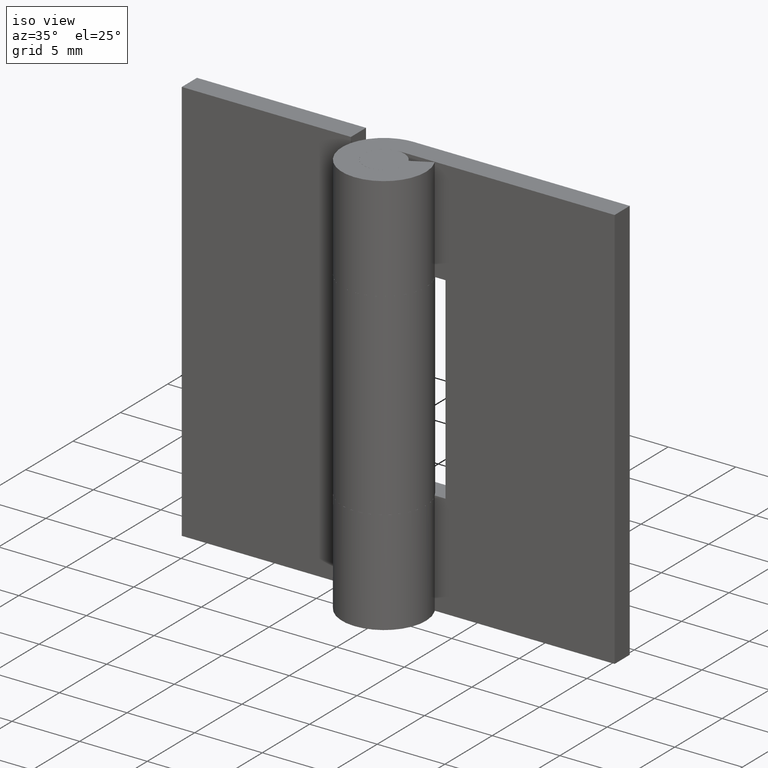
[diagram: clean part render]
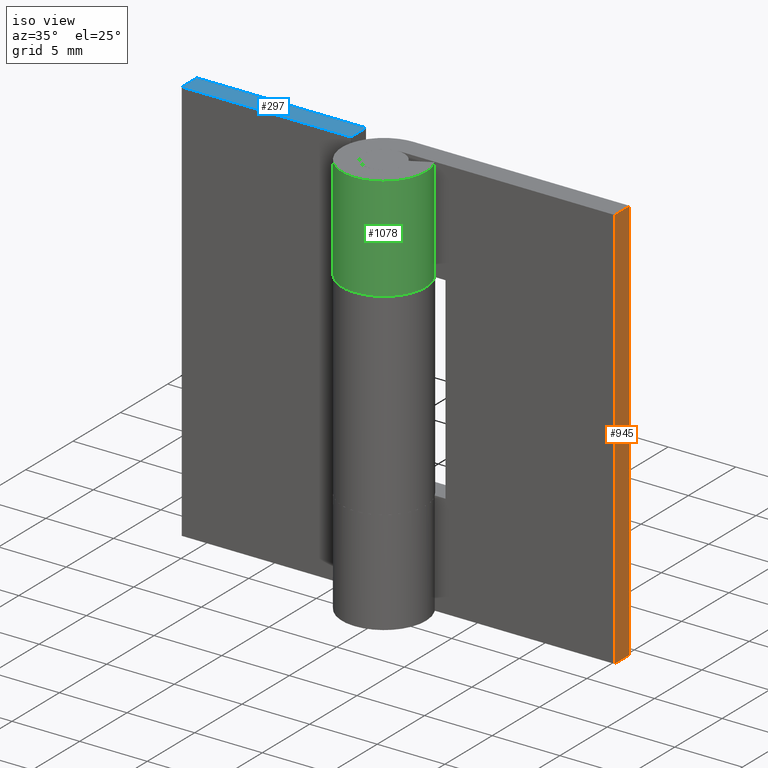
[diagram: same view with three faces highlighted in distinct colors, each labeled with its STEP entity id]
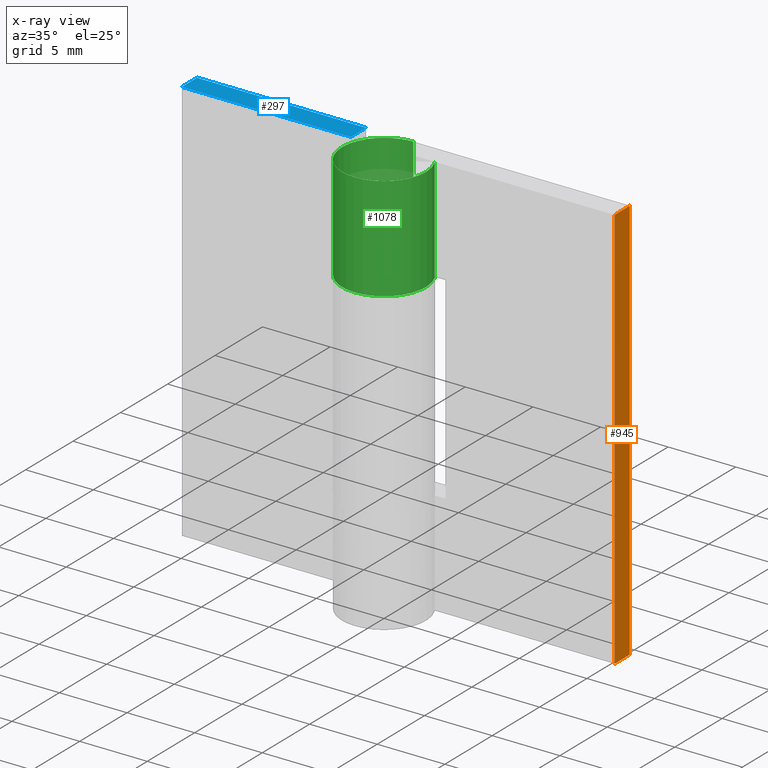
[diagram: x-ray of the same camera — body ghosted, the three highlighted faces saturated]
A machine part, iso view with three faces highlighted in distinct colors.
The next image is the same camera in x-ray (body ghosted, the three faces saturated) — at least one of them is partly hidden behind the body in this view.
Their STEP definitions:

[orange] entity #945 — the highlighted face is a freeform B-spline surface patch.
#725=CARTESIAN_POINT('',(16.0,3.099998000000000,0.0));
#726=VERTEX_POINT('',#725);
#732=CARTESIAN_POINT('',(16.0,1.500000000000000,0.0));
#733=VERTEX_POINT('',#732);
#734=CARTESIAN_POINT('',(16.0,3.099998000000000,0.0));
#735=CARTESIAN_POINT('',(16.0,1.500000000000000,0.0));
#736=QUASI_UNIFORM_CURVE('',1,(#734,#735),.UNSPECIFIED.,.F.,.U.);
#737=EDGE_CURVE('',#726,#733,#736,.T.);
#831=CARTESIAN_POINT('',(16.0,1.500000000000000,30.0));
#832=VERTEX_POINT('',#831);
#838=CARTESIAN_POINT('',(16.0,3.099998000000000,30.0));
#839=VERTEX_POINT('',#838);
#840=CARTESIAN_POINT('',(16.0,3.099998000000000,30.0));
#841=CARTESIAN_POINT('',(16.0,1.500000000000000,30.0));
#842=QUASI_UNIFORM_CURVE('',1,(#840,#841),.UNSPECIFIED.,.F.,.U.);
#843=EDGE_CURVE('',#839,#832,#842,.T.);
#918=CARTESIAN_POINT('',(16.0,1.500000000000000,30.0));
#919=CARTESIAN_POINT('',(16.0,1.500000000000000,0.0));
#920=QUASI_UNIFORM_CURVE('',1,(#918,#919),.UNSPECIFIED.,.F.,.U.);
#921=EDGE_CURVE('',#832,#733,#920,.T.);
#930=CARTESIAN_POINT('',(16.0,1.420080103001106,31.498499941854181));
#931=CARTESIAN_POINT('',(16.0,1.420080103001106,-1.498500746516883));
#932=CARTESIAN_POINT('',(16.0,3.179917939914184,31.498499941854181));
#933=CARTESIAN_POINT('',(16.0,3.179917939914184,-1.498500746516883));
#934=B_SPLINE_SURFACE_WITH_KNOTS('',1,1,((#930,#932),(#931,#933)),.UNSPECIFIED.,.F.,.F.,.U.,(2,2),(2,2),(0.0,32.997000688371060),(0.041708334948495,0.958291687403247),.UNSPECIFIED.);
#935=ORIENTED_EDGE('',*,*,#737,.F.);
#936=CARTESIAN_POINT('',(16.0,3.099998000000000,30.0));
#937=CARTESIAN_POINT('',(16.0,3.099998000000000,0.0));
#938=QUASI_UNIFORM_CURVE('',1,(#936,#937),.UNSPECIFIED.,.F.,.U.);
#939=EDGE_CURVE('',#839,#726,#938,.T.);
#940=ORIENTED_EDGE('',*,*,#939,.F.);
#941=ORIENTED_EDGE('',*,*,#843,.T.);
#942=ORIENTED_EDGE('',*,*,#921,.T.);
#943=EDGE_LOOP('',(#935,#940,#941,#942));
#944=FACE_OUTER_BOUND('',#943,.T.);
#945=ADVANCED_FACE('',(#944),#934,.T.);

[blue] entity #297 — the highlighted face is a freeform B-spline surface patch.
#135=CARTESIAN_POINT('',(-3.500000000000100,3.099998000000000,30.0));
#136=VERTEX_POINT('',#135);
#142=CARTESIAN_POINT('',(-3.500000000000100,1.499999999999946,30.0));
#143=VERTEX_POINT('',#142);
#144=CARTESIAN_POINT('',(-3.500000000000100,1.499999999999946,30.0));
#145=CARTESIAN_POINT('',(-3.500000000000100,3.099998000000000,30.0));
#146=QUASI_UNIFORM_CURVE('',1,(#144,#145),.UNSPECIFIED.,.F.,.U.);
#147=EDGE_CURVE('',#143,#136,#146,.T.);
#270=CARTESIAN_POINT('',(-16.624374975772572,1.420080103001050,30.0));
#271=CARTESIAN_POINT('',(-2.875624688951403,1.420080103001050,30.0));
#272=CARTESIAN_POINT('',(-16.624374975772572,3.179917939914187,30.0));
#273=CARTESIAN_POINT('',(-2.875624688951403,3.179917939914187,30.0));
#274=B_SPLINE_SURFACE_WITH_KNOTS('',1,1,((#270,#272),(#271,#273)),.UNSPECIFIED.,.F.,.F.,.U.,(2,2),(2,2),(0.0,13.748750286821171),(0.041708334948495,0.958291687403247),.UNSPECIFIED.);
#275=CARTESIAN_POINT('',(-16.0,1.500000000000000,30.0));
#276=VERTEX_POINT('',#275);
#277=CARTESIAN_POINT('',(-16.0,1.500000000000000,30.0));
#278=CARTESIAN_POINT('',(-3.500000000000100,1.499999999999946,30.0));
#279=QUASI_UNIFORM_CURVE('',1,(#277,#278),.UNSPECIFIED.,.F.,.U.);
#280=EDGE_CURVE('',#276,#143,#279,.T.);
#281=ORIENTED_EDGE('',*,*,#280,.T.);
#282=ORIENTED_EDGE('',*,*,#147,.T.);
#283=CARTESIAN_POINT('',(-16.0,3.099998000000000,30.0));
#284=VERTEX_POINT('',#283);
#285=CARTESIAN_POINT('',(-3.500000000000100,3.099998000000000,30.0));
#286=CARTESIAN_POINT('',(-16.0,3.099998000000000,30.0));
#287=QUASI_UNIFORM_CURVE('',1,(#285,#286),.UNSPECIFIED.,.F.,.U.);
#288=EDGE_CURVE('',#136,#284,#287,.T.);
#289=ORIENTED_EDGE('',*,*,#288,.T.);
#290=CARTESIAN_POINT('',(-16.0,3.099998000000000,30.0));
#291=CARTESIAN_POINT('',(-16.0,1.500000000000000,30.0));
#292=QUASI_UNIFORM_CURVE('',1,(#290,#291),.UNSPECIFIED.,.F.,.U.);
#293=EDGE_CURVE('',#284,#276,#292,.T.);
#294=ORIENTED_EDGE('',*,*,#293,.T.);
#295=EDGE_LOOP('',(#281,#282,#289,#294));
#296=FACE_OUTER_BOUND('',#295,.T.);
#297=ADVANCED_FACE('',(#296),#274,.T.);

[green] entity #1078 — the highlighted face is a freeform B-spline surface patch.
#512=CARTESIAN_POINT('',(2.739981751764050,1.450000000000000,22.300002999999801));
#513=VERTEX_POINT('',#512);
#514=CARTESIAN_POINT('',(0.0,3.099998000000000,22.300002999999801));
#515=VERTEX_POINT('',#514);
#516=CARTESIAN_POINT('',(2.739981751764050,1.450000000000000,22.300002999999801));
#517=CARTESIAN_POINT('',(3.842027408336781,-0.632471143840419,22.300002999999805));
#518=CARTESIAN_POINT('',(2.130594885355311,-2.251790737784725,22.300002999999801));
#519=CARTESIAN_POINT('',(0.419162362373840,-3.871110331729031,22.300002999999805));
#520=CARTESIAN_POINT('',(-1.599218559171949,-2.655655344977900,22.300002999999801));
#521=CARTESIAN_POINT('',(-3.617599480717733,-1.440200358226772,22.300002999999805));
#522=CARTESIAN_POINT('',(-2.986848545660752,0.829898189834368,22.300002999999801));
#523=CARTESIAN_POINT('',(-2.356097610603769,3.099996737895513,22.300002999999805));
#524=CARTESIAN_POINT('',(0.0,3.099998000000000,22.300002999999801));
#532=(BOUNDED_CURVE()B_SPLINE_CURVE(2,(#516,#517,#518,#519,#520,#521,#522,#523,#524),.UNSPECIFIED.,.F.,.U.)B_SPLINE_CURVE_WITH_KNOTS((3,2,2,2,3),(0.0,0.250000000000000,0.500000000000000,0.750000000000000,1.0),.UNSPECIFIED.)CURVE()GEOMETRIC_REPRESENTATION_ITEM()RATIONAL_B_SPLINE_CURVE((1.0,0.796150117301084,1.0,0.796150117301084,1.0,0.796150117301084,1.0,0.796150117301084,1.0))REPRESENTATION_ITEM(''));
#533=EDGE_CURVE('',#513,#515,#532,.T.);
#535=CARTESIAN_POINT('',(0.003521362805220,3.099998000000000,22.300002999999801));
#536=VERTEX_POINT('',#535);
#537=CARTESIAN_POINT('',(0.0,3.099998000000000,22.300002999999801));
#538=CARTESIAN_POINT('',(0.003521362805220,3.099998000000000,22.300002999999801));
#539=QUASI_UNIFORM_CURVE('',1,(#537,#538),.UNSPECIFIED.,.F.,.U.);
#540=EDGE_CURVE('',#515,#536,#539,.T.);
#780=CARTESIAN_POINT('',(2.739981751764050,1.450000000000000,30.0));
#781=VERTEX_POINT('',#780);
#782=CARTESIAN_POINT('',(0.003521362805220,3.099998000000000,30.0));
#783=VERTEX_POINT('',#782);
#784=CARTESIAN_POINT('',(2.739981751764050,1.450000000000002,30.0));
#785=CARTESIAN_POINT('',(3.842352259281344,-0.633086258124314,30.0));
#786=CARTESIAN_POINT('',(2.129955333572986,-2.252396562993291,30.0));
#787=CARTESIAN_POINT('',(0.417558407864627,-3.871706867862268,30.0));
#788=CARTESIAN_POINT('',(-1.600726611546711,-2.654745621540072,30.0));
#789=CARTESIAN_POINT('',(-3.619011630958046,-1.437784375217877,30.0));
#790=CARTESIAN_POINT('',(-2.986140433580759,0.832445380150624,30.0));
#791=CARTESIAN_POINT('',(-2.353269236203469,3.102675135519129,30.0));
#792=CARTESIAN_POINT('',(0.003521362805217,3.099997999999999,30.0));
#800=(BOUNDED_CURVE()B_SPLINE_CURVE(2,(#784,#785,#786,#787,#788,#789,#790,#791,#792),.UNSPECIFIED.,.F.,.U.)B_SPLINE_CURVE_WITH_KNOTS((3,2,2,2,3),(0.0,0.250000000000000,0.500000000000000,0.750000000000000,1.0),.UNSPECIFIED.)CURVE()GEOMETRIC_REPRESENTATION_ITEM()RATIONAL_B_SPLINE_CURVE((1.0,0.796064190964140,1.0,0.796064190964140,1.0,0.796064190964140,1.0,0.796064190964140,1.0))REPRESENTATION_ITEM(''));
#801=EDGE_CURVE('',#781,#783,#800,.T.);
#865=CARTESIAN_POINT('',(2.739981751764050,1.450000000000000,30.0));
#866=CARTESIAN_POINT('',(2.739981751764050,1.450000000000000,22.300002999999801));
#867=QUASI_UNIFORM_CURVE('',1,(#865,#866),.UNSPECIFIED.,.F.,.U.);
#868=EDGE_CURVE('',#781,#513,#867,.T.);
#954=CARTESIAN_POINT('',(0.003521362805220,3.099998000000000,30.0));
#955=CARTESIAN_POINT('',(0.003521362805220,3.099998000000000,22.300002999999801));
#956=QUASI_UNIFORM_CURVE('',1,(#954,#955),.UNSPECIFIED.,.F.,.U.);
#957=EDGE_CURVE('',#783,#536,#956,.T.);
#1049=CARTESIAN_POINT('',(0.087215809709333,3.098772886569253,30.192499925000011));
#1050=CARTESIAN_POINT('',(0.087215809709333,3.098772886569253,22.102690576874789));
#1051=CARTESIAN_POINT('',(-3.694254208917625,3.205203393624339,30.192499925000003));
#1052=CARTESIAN_POINT('',(-3.694254208917625,3.205203393624339,22.102690576874796));
#1053=CARTESIAN_POINT('',(-3.055487706738078,-0.523445196723091,30.192499925000011));
#1054=CARTESIAN_POINT('',(-3.055487706738078,-0.523445196723091,22.102690576874789));
#1055=CARTESIAN_POINT('',(-2.416721204558533,-4.252093787070521,30.192499925000003));
#1056=CARTESIAN_POINT('',(-2.416721204558533,-4.252093787070521,22.102690576874796));
#1057=CARTESIAN_POINT('',(1.113692359485487,-2.893041535896719,30.192499925000011));
#1058=CARTESIAN_POINT('',(1.113692359485487,-2.893041535896719,22.102690576874789));
#1059=CARTESIAN_POINT('',(4.644105923529505,-1.533989284722917,30.192499925000003));
#1060=CARTESIAN_POINT('',(4.644105923529505,-1.533989284722917,22.102690576874796));
#1061=CARTESIAN_POINT('',(2.617769613640667,1.660506624467241,30.192499925000011));
#1062=CARTESIAN_POINT('',(2.617769613640667,1.660506624467241,22.102690576874789));
#1070=(BOUNDED_SURFACE()B_SPLINE_SURFACE(1,2,((#1049,#1051,#1053,#1055,#1057,#1059,#1061),(#1050,#1052,#1054,#1056,#1058,#1060,#1062)),.UNSPECIFIED.,.F.,.F.,.U.)B_SPLINE_SURFACE_WITH_KNOTS((2,2),(3,2,2,3),(0.0,8.089809348125218),(0.0,5.870281529289077,11.740563058578150,17.610844587867231),.UNSPECIFIED.)GEOMETRIC_REPRESENTATION_ITEM()RATIONAL_B_SPLINE_SURFACE(((1.0,0.633830967398710,1.0,0.633830967398710,1.0,0.633830967398710,1.0),(1.0,0.633830967398710,1.0,0.633830967398710,1.0,0.633830967398710,1.0)))REPRESENTATION_ITEM('')SURFACE());
#1071=ORIENTED_EDGE('',*,*,#533,.F.);
#1072=ORIENTED_EDGE('',*,*,#868,.F.);
#1073=ORIENTED_EDGE('',*,*,#801,.T.);
#1074=ORIENTED_EDGE('',*,*,#957,.T.);
#1075=ORIENTED_EDGE('',*,*,#540,.F.);
#1076=EDGE_LOOP('',(#1071,#1072,#1073,#1074,#1075));
#1077=FACE_OUTER_BOUND('',#1076,.T.);
#1078=ADVANCED_FACE('',(#1077),#1070,.T.);